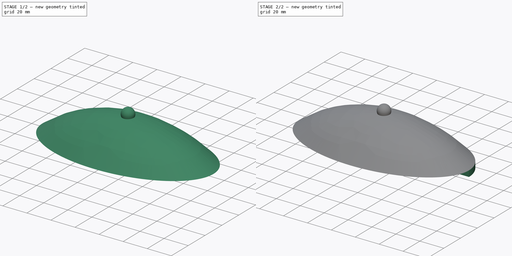
[diagram: build sequence overview — one tinted view per stage of 2, left to right]
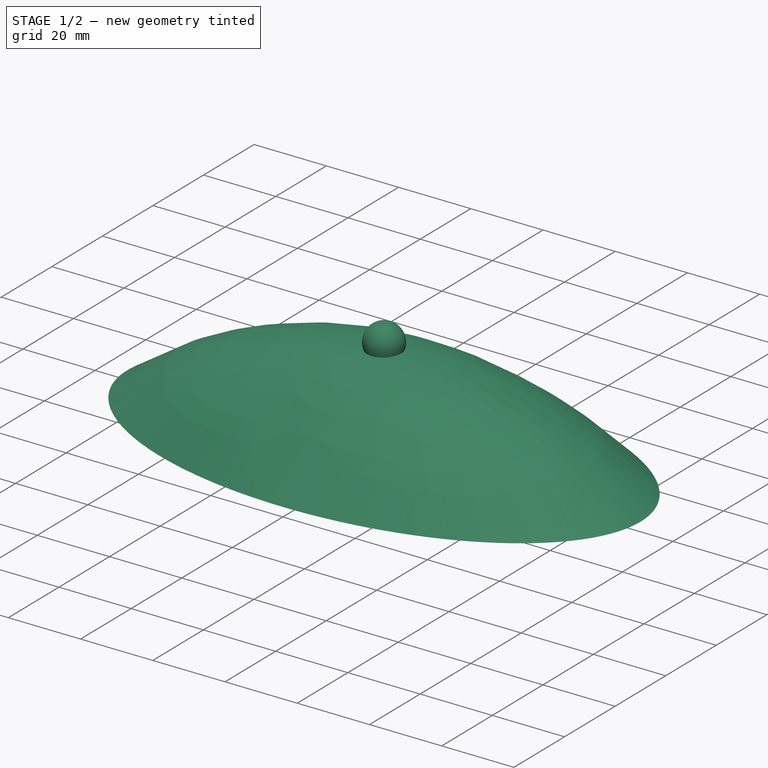
[diagram: stage 1 of 2 — iso view after this stage's code; geometry added in this stage tinted green]
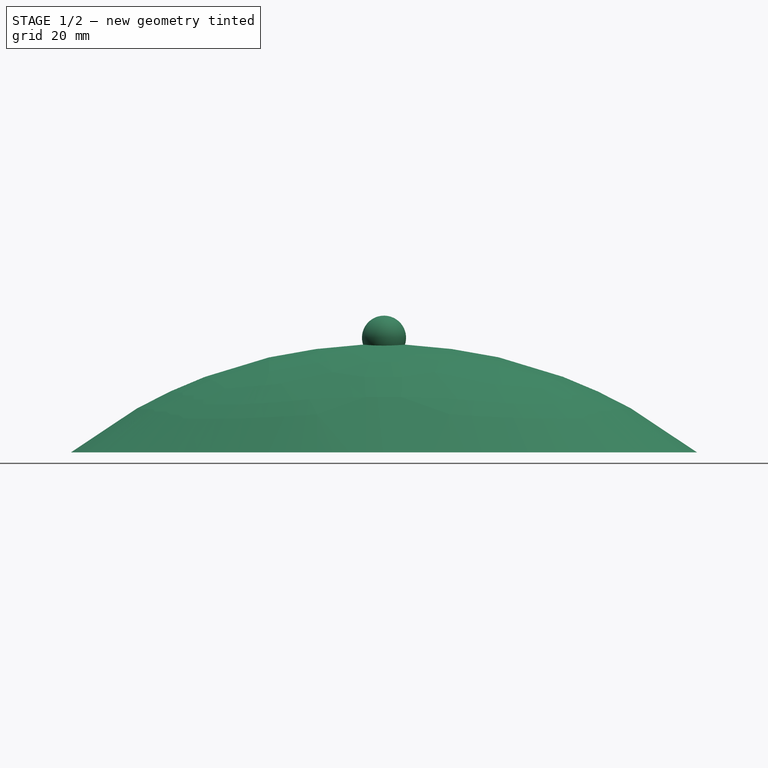
[diagram: stage 1 of 2 — front view after this stage's code; geometry added in this stage tinted green]
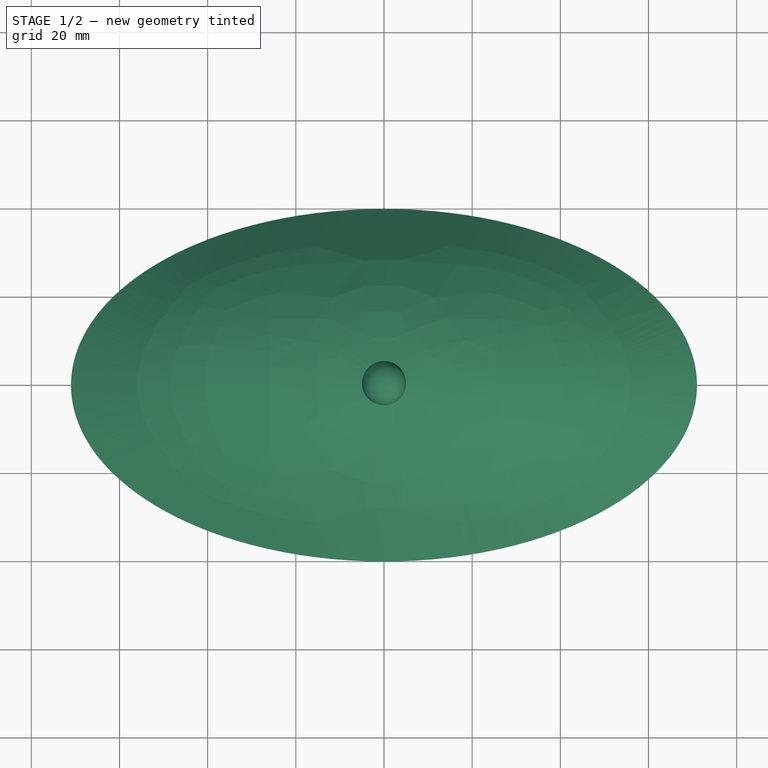
[diagram: stage 1 of 2 — top view after this stage's code; geometry added in this stage tinted green]
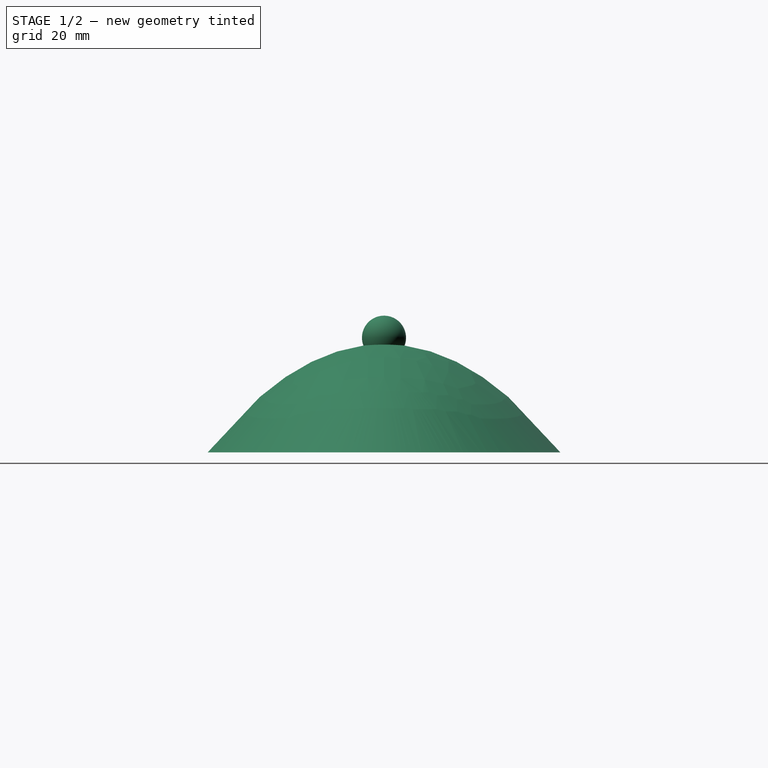
[diagram: stage 1 of 2 — right view after this stage's code; geometry added in this stage tinted green]
FCSTD DOCUMENT  (FreeCAD 0.21RUnknown)
Label: part10.2
License: All rights reserved
LicenseURL: http://en.wikipedia.org/wiki/All_rights_reserved
objects: Sketcher::SketchObject×2, Surface::Filling×2, Part::RuledSurface×2, Part::Extrusion×1, Part::Mirroring×1, Part::Compound×1, Part::Feature×1, Part::Sphere×1, Part::MultiFuse×1
note: 12 computed .brp shape members not serialized (recipe doc carries the construction recipe); baked Part::Feature solids carry a one-line shape summary decoded from their .brp

FEATURE [Surface::Filling] Surface
  Anisotropy = false
  BoundaryEdges = -> [Extrude,Part__Mirroring]
  BoundaryOrder = [0,0]
  Degree = 3
  Iterations = 2
  MaximumDegree = 8
  MaximumSegments = 9
  PointsOnCurve = 15
  TolAngular = 0.01
  TolCurvature = 0.1
  Tolerance2d = 1e-05
  Tolerance3d = 0.0001
  UnboundEdges = -> [Sketch001]
  UnboundOrder = [0]
FEATURE [Surface::Filling] Surface001
  Anisotropy = false
  BoundaryEdges = -> [Extrude,Part__Mirroring]
  BoundaryOrder = [0,0]
  Degree = 3
  Iterations = 2
  MaximumDegree = 8
  MaximumSegments = 9
  PointsOnCurve = 15
  TolAngular = 0.01
  TolCurvature = 0.1
  Tolerance2d = 1e-05
  Tolerance3d = 0.0001
  UnboundEdges = -> [Sketch001]
  UnboundOrder = [0]
FEATURE [Part::RuledSurface] Ruled_Surface
  Curve1 = -> Surface001 [Edge2]
  Curve2 = -> Surface [Edge2]
  Orientation = 1
FEATURE [Part::RuledSurface] Ruled_Surface001
  Curve1 = -> Surface [Edge1]
  Curve2 = -> Surface001 [Edge1]
  Orientation = 1
FEATURE [Part::Compound] Compound
  Links = -> [Ruled_Surface001,Ruled_Surface,Surface,Surface001]
FEATURE [Part::Feature] Compound_solid  label="Compound (Solid)"
  shape: bbox 156.3 x 89.63 x 63.85 mm, 4 faces (baked)
FEATURE [Part::Sphere] Sphere
  Angle1 = -90
  Angle2 = 90
  Angle3 = 360
  AttacherType = Attacher::AttachEngine3D
  Placement = pos=(0,0,26) rot=(0,0,1;0rad)
  Radius = 5
FEATURE [Part::MultiFuse] Fusion
  Shapes = -> [Compound_solid,Sphere]
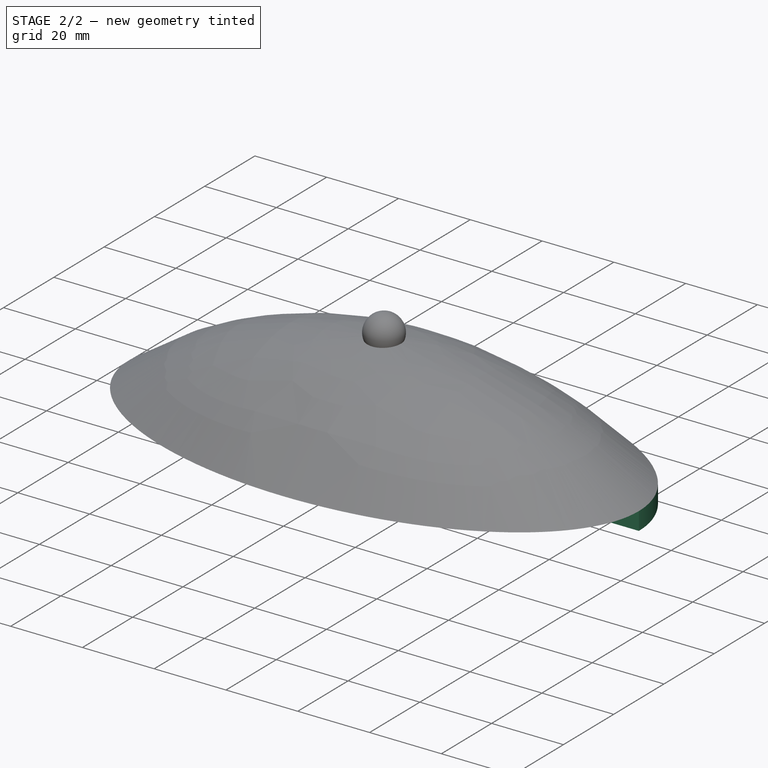
[diagram: stage 2 of 2 — iso view after this stage's code; geometry added in this stage tinted green]
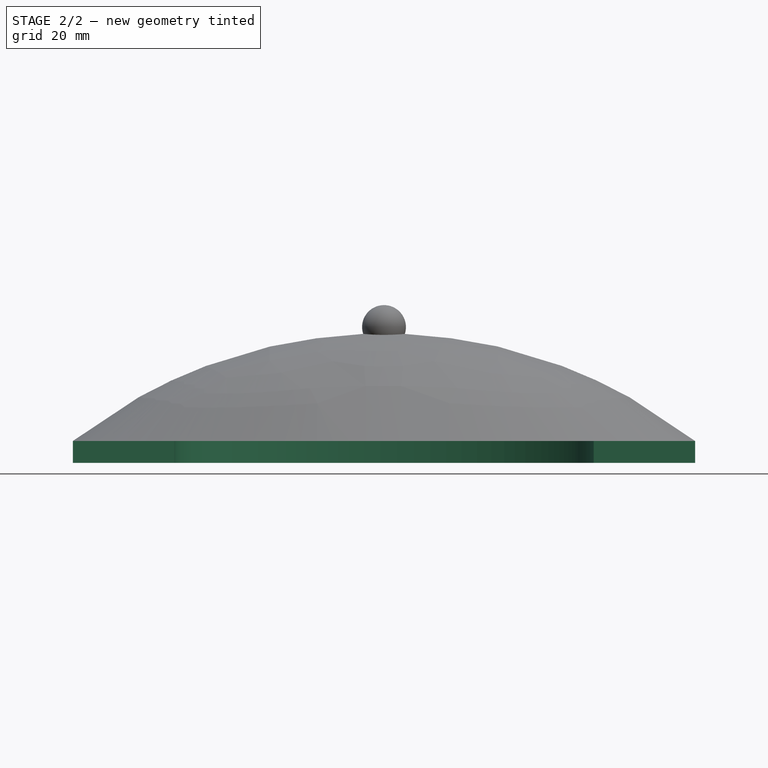
[diagram: stage 2 of 2 — front view after this stage's code; geometry added in this stage tinted green]
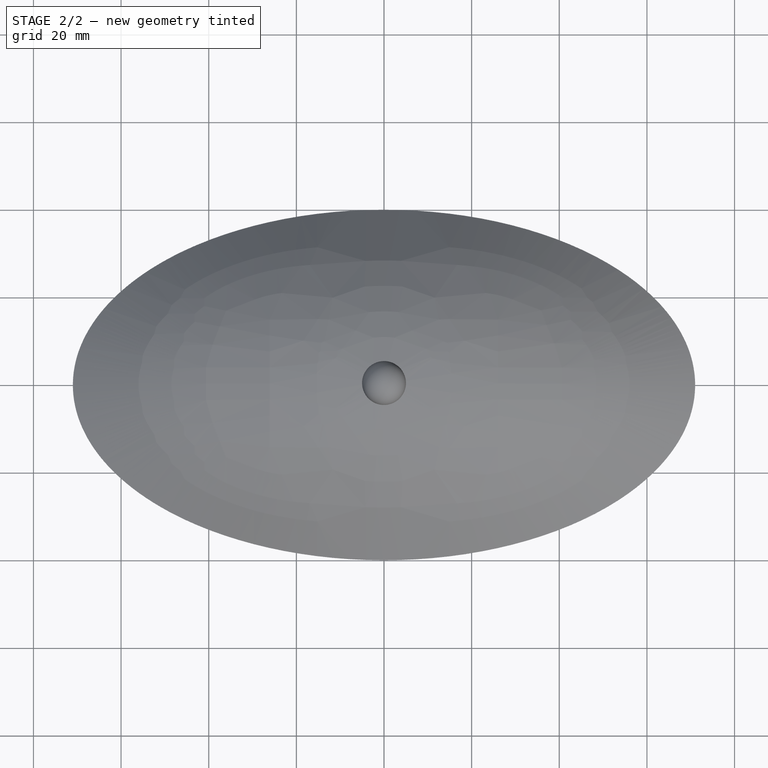
[diagram: stage 2 of 2 — top view after this stage's code; geometry added in this stage tinted green]
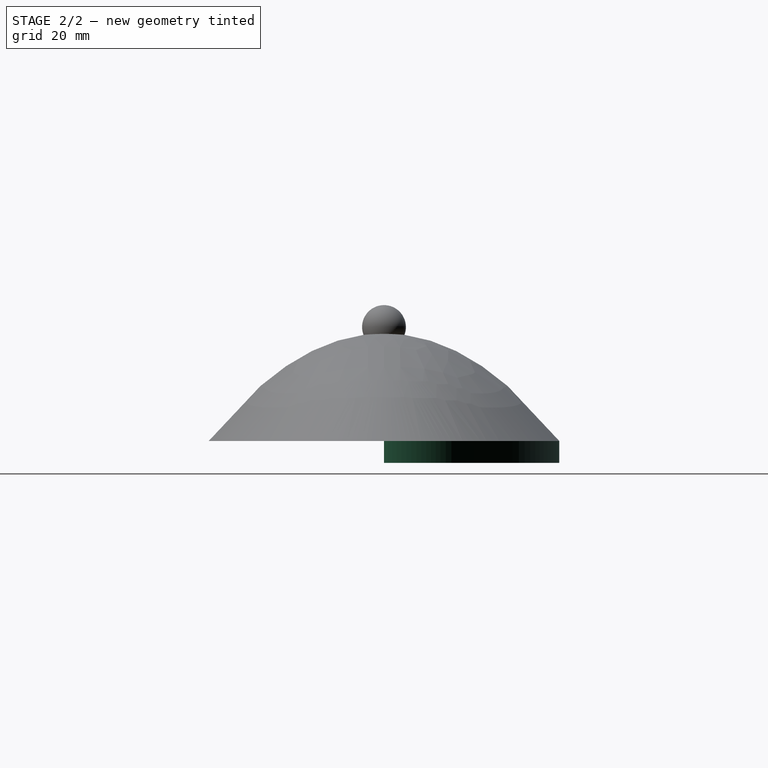
[diagram: stage 2 of 2 — right view after this stage's code; geometry added in this stage tinted green]
FEATURE [Sketcher::SketchObject] Sketch
  FullyConstrained = false
  sketch-geometry (12):
    g0: ArcOfEllipse CenterX=0 CenterY=0 CenterZ=0 NormalX=0 NormalY=0 NormalZ=1 MajorRadius=71 MinorRadius=40 AngleXU=3.14159 StartAngle=0 EndAngle=3.14159
    g1: LineSegment StartX=-71 StartY=0 StartZ=0 EndX=71 EndY=0 EndZ=0
    g2: LineSegment StartX=0 StartY=-40 StartZ=0 EndX=0 EndY=40 EndZ=0
    g3: GeomPoint X=-58.66 Y=0 Z=0
    g4: GeomPoint X=58.66 Y=0 Z=0
    g5: ArcOfEllipse CenterX=0 CenterY=0 CenterZ=0 NormalX=0 NormalY=0 NormalZ=1 MajorRadius=47.8753 MinorRadius=24.286 AngleXU=0 StartAngle=3.14159 EndAngle=6.28319
    g6: LineSegment StartX=47.8753 StartY=0 StartZ=0 EndX=-47.8753 EndY=0 EndZ=0
    g7: LineSegment StartX=0 StartY=24.286 StartZ=0 EndX=0 EndY=-24.286 EndZ=0
    g8: GeomPoint X=41.2582 Y=0 Z=0
    g9: GeomPoint X=-41.2582 Y=0 Z=0
    g10: LineSegment StartX=-71 StartY=0 StartZ=0 EndX=-47.8753 EndY=3e-15 EndZ=0
    g11: LineSegment StartX=71 StartY=0 StartZ=0 EndX=47.8753 EndY=-5.9e-15 EndZ=0
  constraints (16):
    c: InternalAlignment(g1-g4 -> g0) x4
    c: Coincident(g0,g-1)
    c: PointOnObject(g0,g-1)
    c: PointOnObject(g2,g-2)
    c: PointOnObject(g0,g-1)
    c: InternalAlignment(g6-g9 -> g5) x4
    c: Coincident(g5,g0)
    c: PointOnObject(g5,g1)
    c: PointOnObject(g5,g1)
    c: PointOnObject(g9,g1)
    c: Coincident(g10,g0)
    c: Coincident(g10,g5)
    c: Coincident(g11,g0)
    c: Coincident(g11,g5)
    c: DistanceX(g1,g1) = 142
    c: DistanceY(g2,g2) = 80
FEATURE [Sketcher::SketchObject] Sketch001
  ExternalGeometry = -> [Sketch]
  FullyConstrained = true
  Placement = pos=(0,0,0) rot=(1,0,0;1.5708rad)
  sketch-geometry (2):
    g0: ArcOfCircle CenterX=-4.1e-15 CenterY=-80.4655 CenterZ=0 NormalX=0 NormalY=0 NormalZ=1 AngleXU=0 Radius=93.6309 StartAngle=1.03408 EndAngle=2.10752
    g1: ArcOfCircle CenterX=-1.2e-15 CenterY=-90.4655 CenterZ=0 NormalX=0 NormalY=0 NormalZ=1 AngleXU=0 Radius=115 StartAngle=0.905374 EndAngle=2.23622
  constraints (6):
    c: Coincident(g0,g-5)
    c: Coincident(g1,g-4)
    c: Coincident(g1,g-6)
    c: Coincident(g0,g-3)
    c: DistanceY(g1,g0) = 10
    c: Radius(g1) = 115
FEATURE [Part::Extrusion] Extrude
  Base = -> Sketch
  Dir = (0,0,1)
  DirMode = 2
  FaceMakerClass = Part::FaceMakerBullseye
  LengthFwd = 5
  LengthRev = 0
  Reversed = true
  Solid = true
  Symmetric = false
FEATURE [Part::Mirroring] Part__Mirroring  label="Extrude (Mirror #1)"
  Base = (0,0,0)
  Normal = (0,1,0)
  Source = -> Extrude
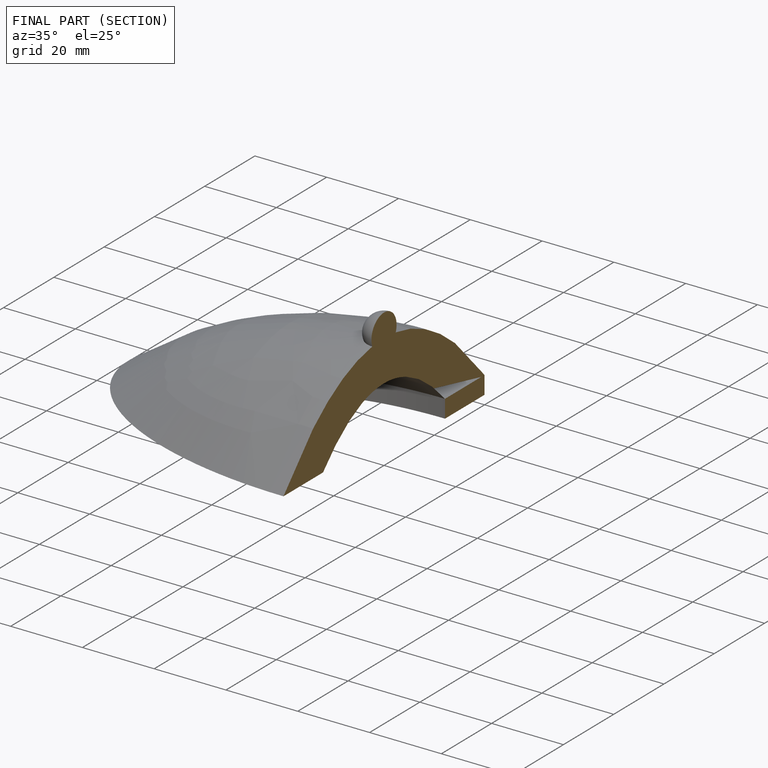
[diagram: finished part — half-section view (interior)]
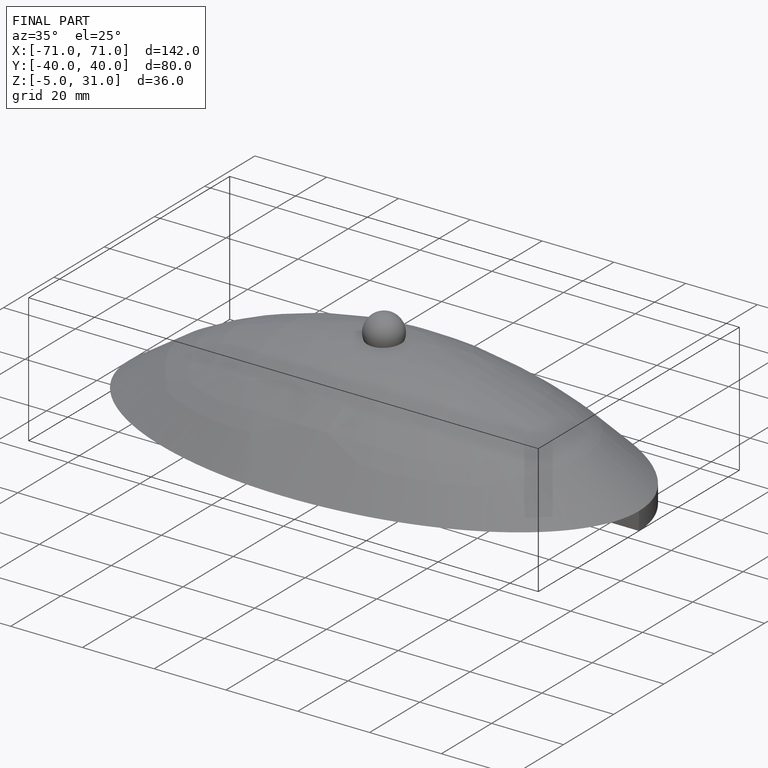
[diagram: finished part — iso view with bounding-box wireframe]
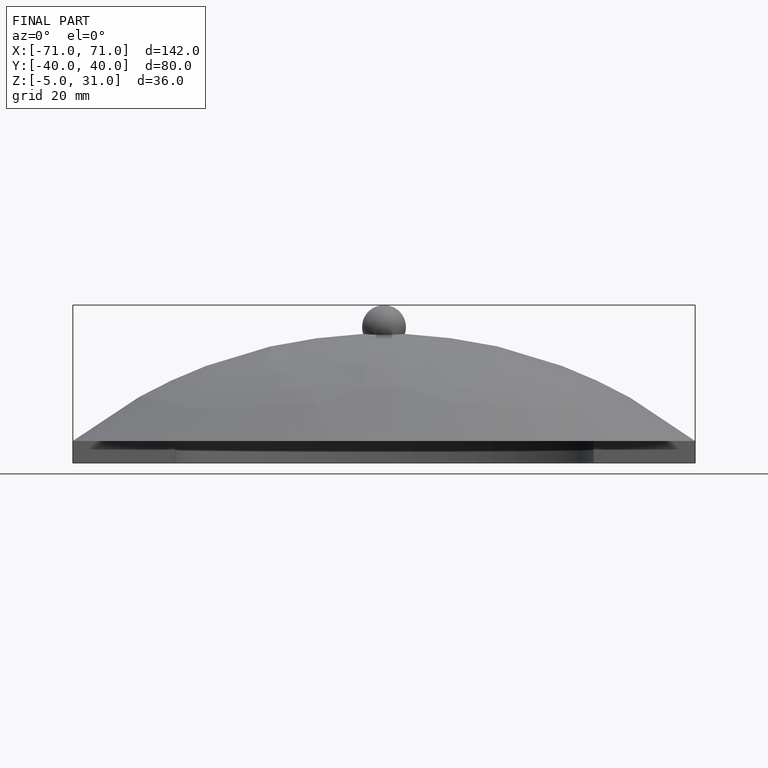
[diagram: finished part — front view with bounding-box wireframe]
